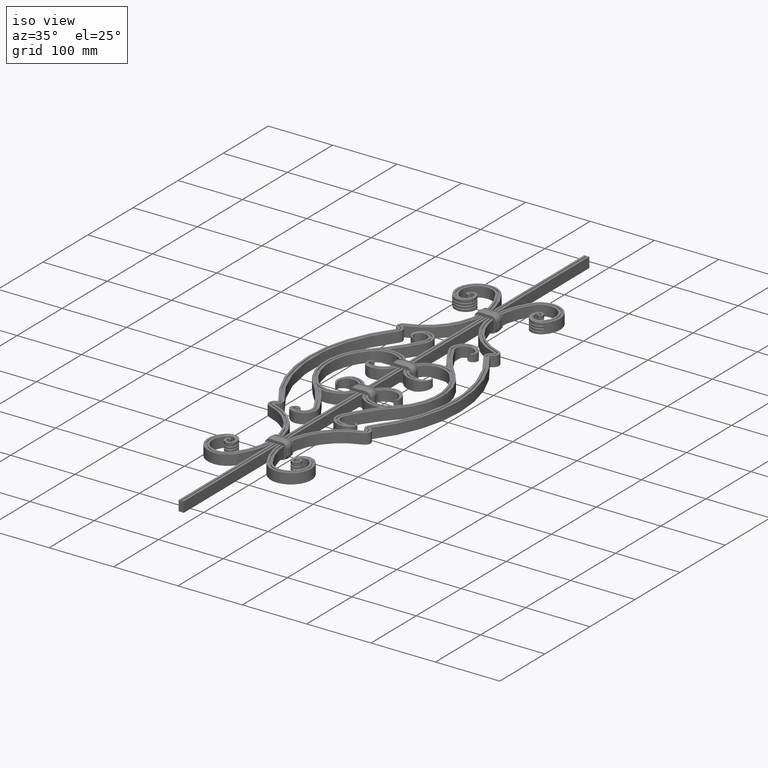
[diagram: clean part render]
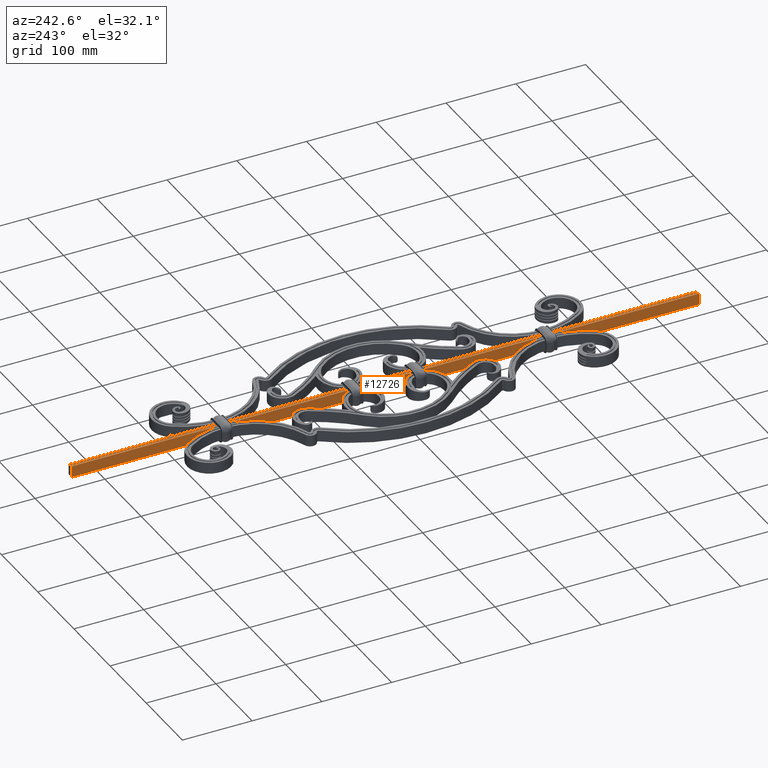
[diagram: tour spotlight — one face highlighted and labeled with its STEP entity id]
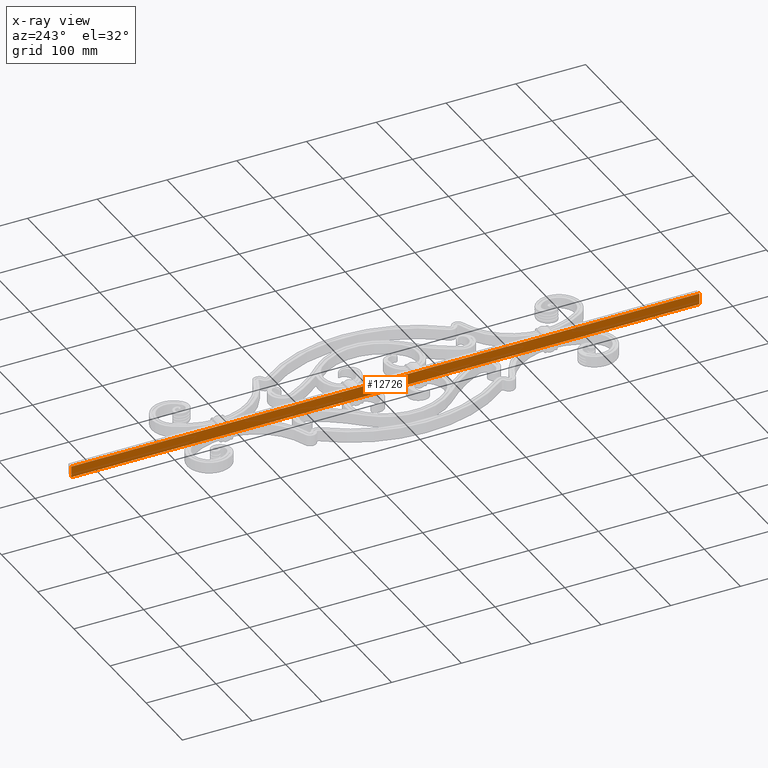
[diagram: x-ray of the same camera — body ghosted, this tour face saturated]
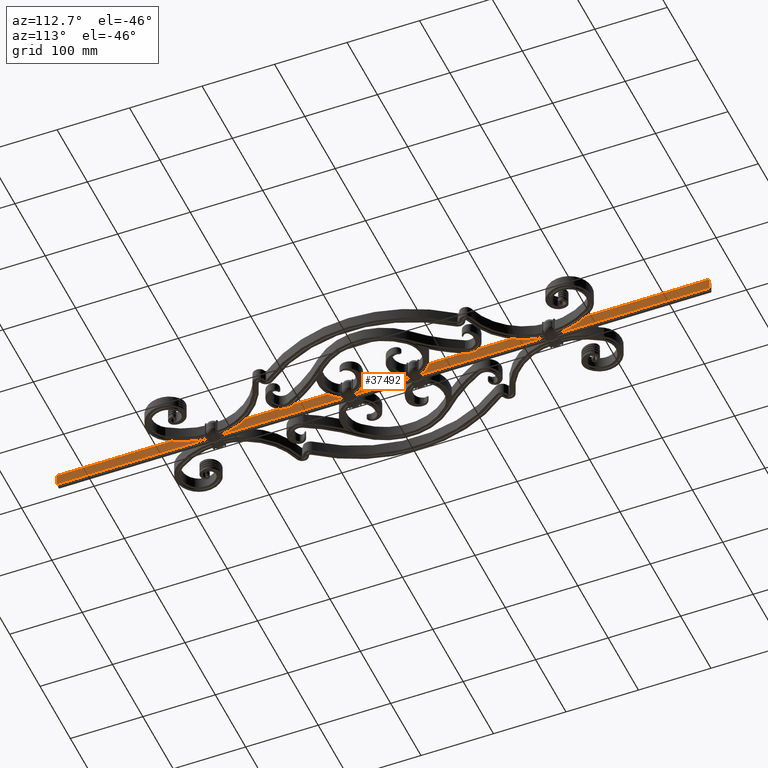
[diagram: tour spotlight — one face highlighted and labeled with its STEP entity id]
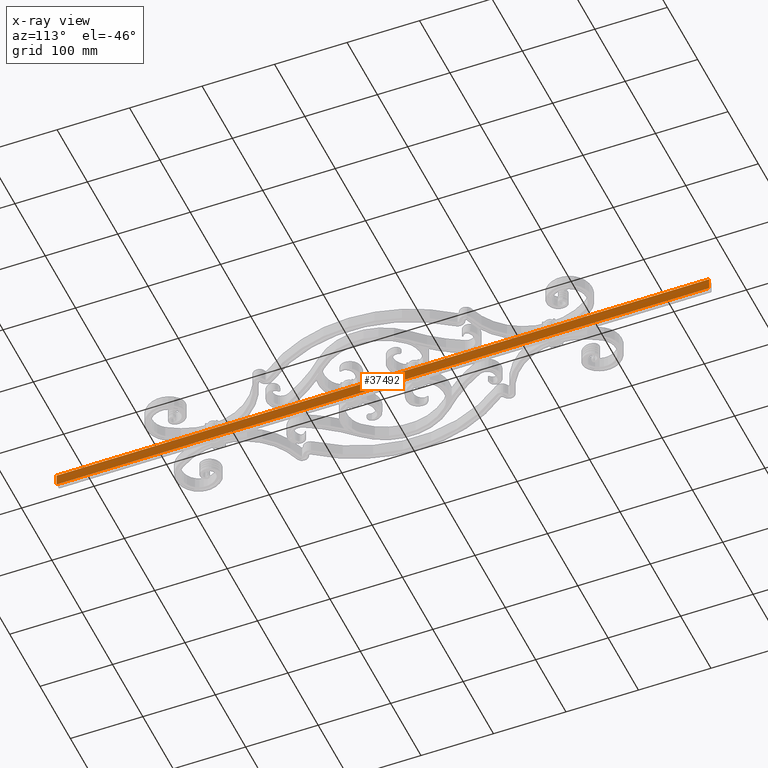
[diagram: x-ray of the same camera — body ghosted, this tour face saturated]
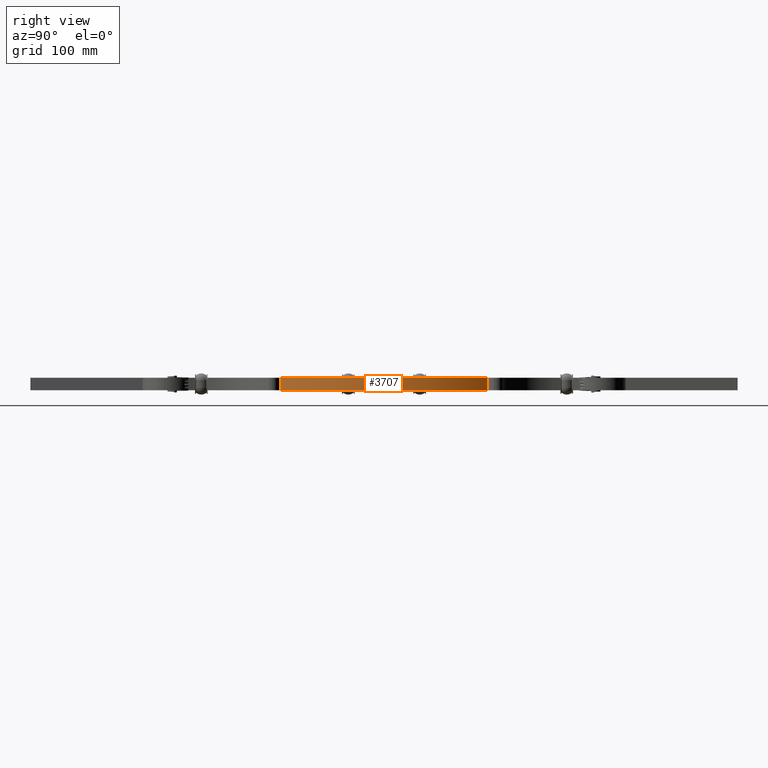
[diagram: tour spotlight — one face highlighted and labeled with its STEP entity id]
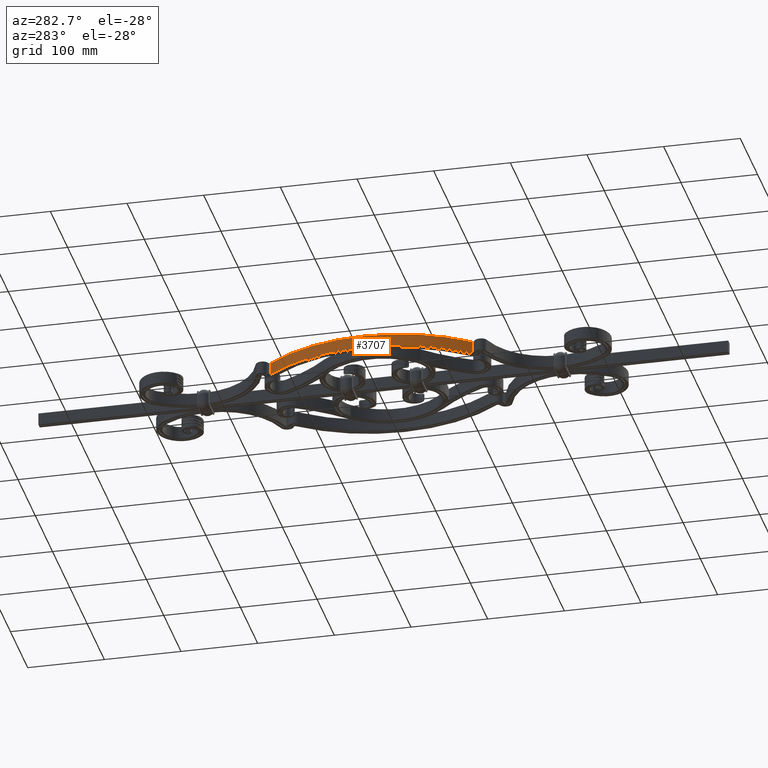
[diagram: tour spotlight — one face highlighted and labeled with its STEP entity id]
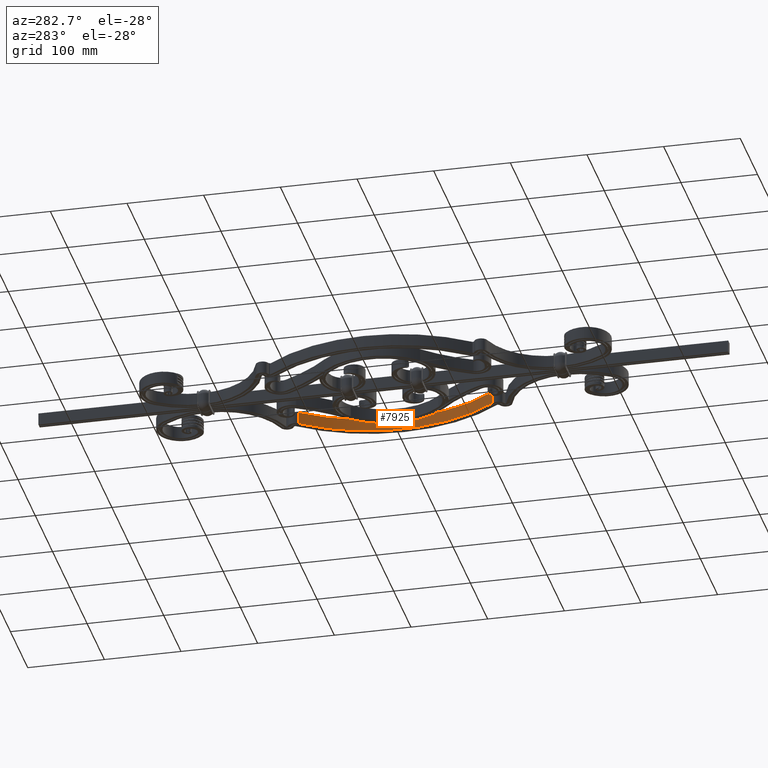
[diagram: tour spotlight — one face highlighted and labeled with its STEP entity id]
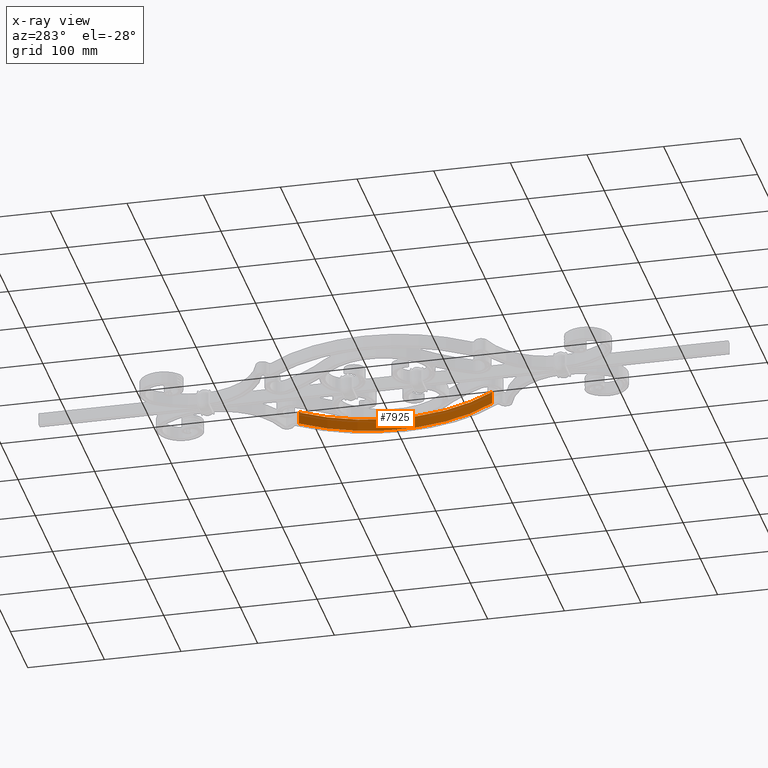
[diagram: x-ray of the same camera — body ghosted, this tour face saturated]
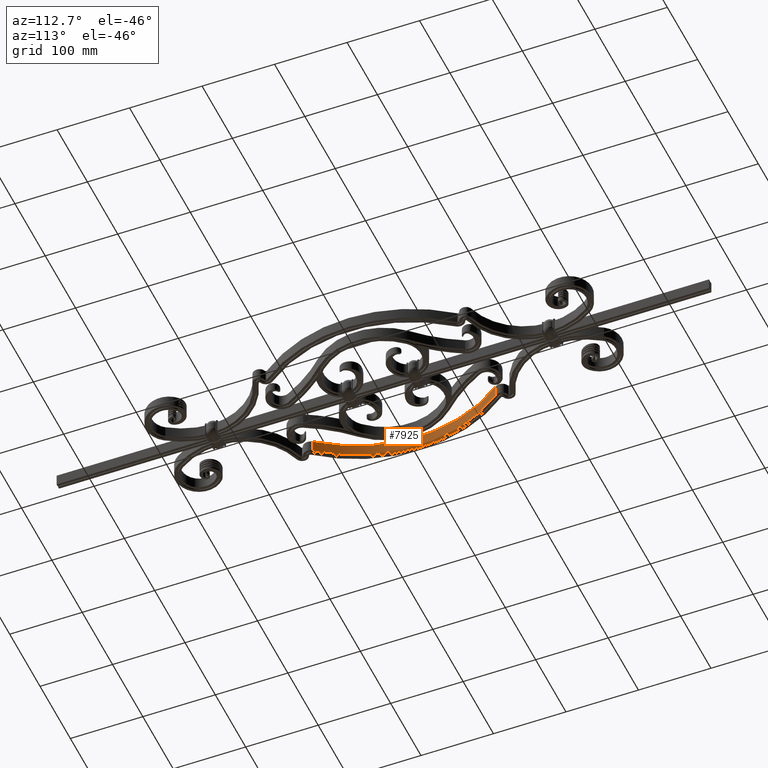
[diagram: tour spotlight — one face highlighted and labeled with its STEP entity id]
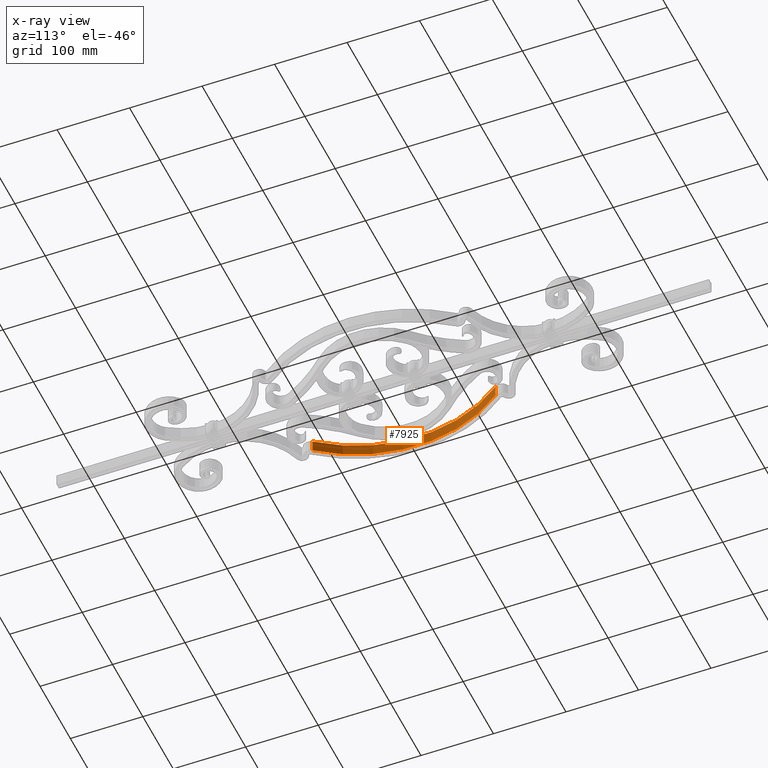
[diagram: x-ray of the same camera — body ghosted, this tour face saturated]
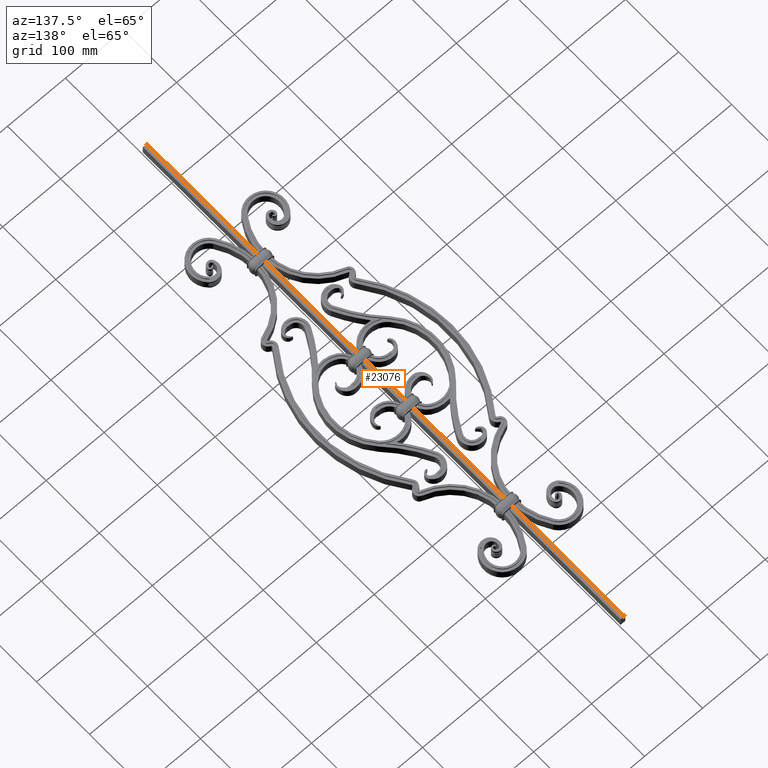
[diagram: tour spotlight — one face highlighted and labeled with its STEP entity id]
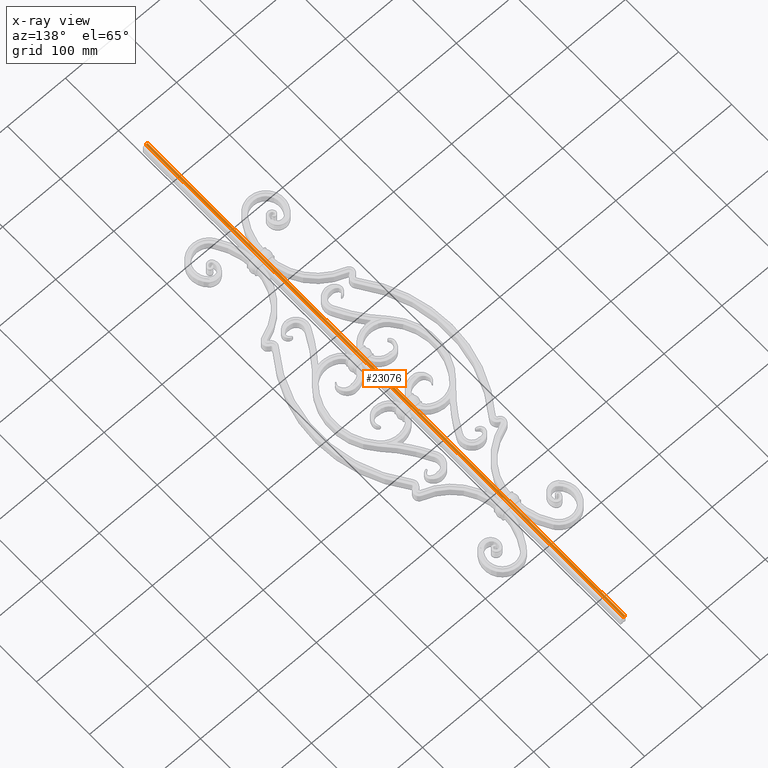
[diagram: x-ray of the same camera — body ghosted, this tour face saturated]
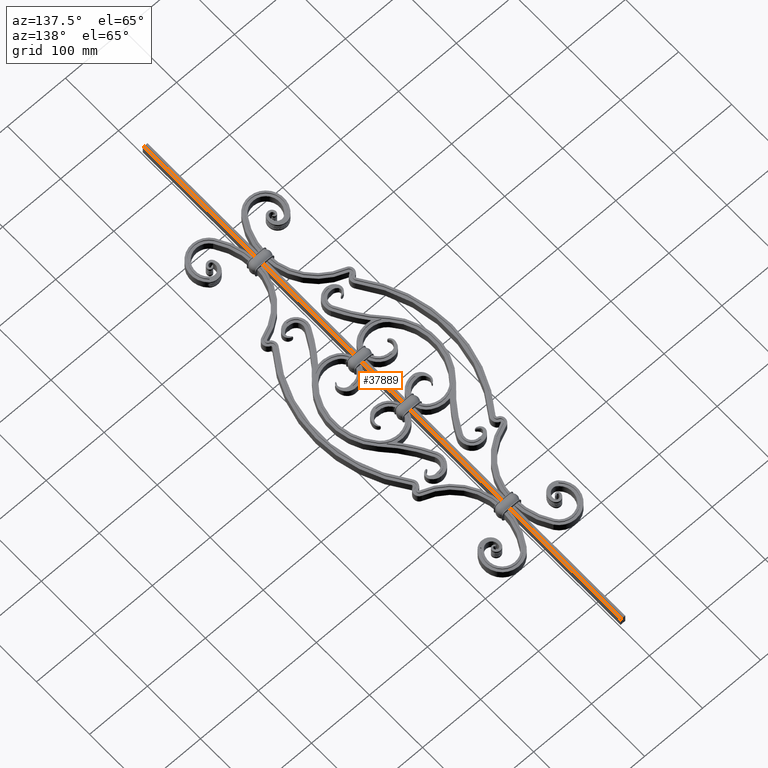
[diagram: tour spotlight — one face highlighted and labeled with its STEP entity id]
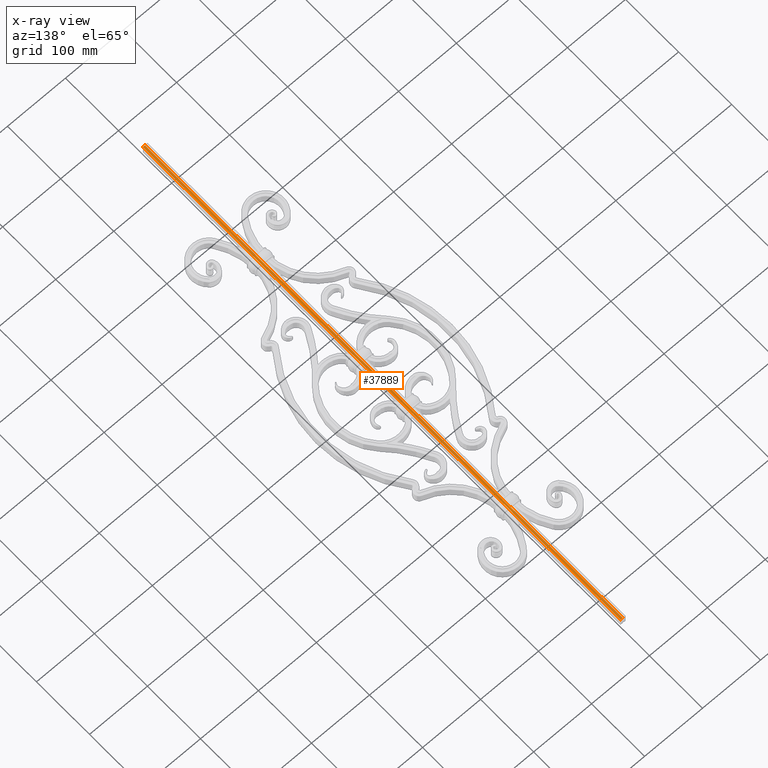
[diagram: x-ray of the same camera — body ghosted, this tour face saturated]
A machine part: a face-by-face anatomy tour. The part has 1314 B-rep faces; the first image is the clean iso view, then the 8 largest visible faces are spotlighted one at a time (largest first), each with its STEP entity span.

Face 1 — auxiliary view, entity #12726. An x-ray twin of the same camera follows (body ghosted, this face saturated) — the face is partly hidden behind the body. In plain terms, the highlighted planar face has unit normal (1, 0, -0).
Definition (entity closure, byte-faithful):
#1818 = DIRECTION ( 'NONE',  ( 5.421010862427522200E-017, 0.0000000000000000000, 1.000000000000000000 ) ) ;
#3768 = ORIENTED_EDGE ( 'NONE', *, *, #26019, .T. ) ;
#3943 = VECTOR ( 'NONE', #30865, 1000.000000000000000 ) ;
#4602 = LINE ( 'NONE', #31978, #15599 ) ;
#4717 = CARTESIAN_POINT ( 'NONE',  ( -3.999999999999999100, 450.0000000000000000, -8.000000000000000000 ) ) ;
#8541 = EDGE_CURVE ( 'NONE', #11926, #9514, #22048, .T. ) ;
#9514 = VERTEX_POINT ( 'NONE', #13615 ) ;
#10082 = CARTESIAN_POINT ( 'NONE',  ( -3.999999999999998200, 450.0000000000000000, 8.000000000000000000 ) ) ;
#10532 = VERTEX_POINT ( 'NONE', #10082 ) ;
#10576 = VECTOR ( 'NONE', #1818, 1000.000000000000000 ) ;
#10737 = DIRECTION ( 'NONE',  ( 1.000000000000000000, 0.0000000000000000000, -5.421010862427522200E-017 ) ) ;
#11288 = LINE ( 'NONE', #36375, #3943 ) ;
#11926 = VERTEX_POINT ( 'NONE', #13637 ) ;
#12726 = ADVANCED_FACE ( 'NONE', ( #33821 ), #16625, .F. ) ;
#13615 = CARTESIAN_POINT ( 'NONE',  ( -3.999999999999998200, -450.0000000000000000, 8.000000000000000000 ) ) ;
#13637 = CARTESIAN_POINT ( 'NONE',  ( -3.999999999999999100, -450.0000000000000000, -8.000000000000000000 ) ) ;
#13987 = VERTEX_POINT ( 'NONE', #31409 ) ;
#15599 = VECTOR ( 'NONE', #37721, 1000.000000000000000 ) ;
#16625 = PLANE ( 'NONE',  #27175 ) ;
#19095 = ORIENTED_EDGE ( 'NONE', *, *, #36166, .F. ) ;
#19370 = CARTESIAN_POINT ( 'NONE',  ( -3.999999999999999100, -450.0000000000000000, -8.000000000000000000 ) ) ;
#22048 = LINE ( 'NONE', #19370, #10576 ) ;
#23220 = EDGE_LOOP ( 'NONE', ( #36790, #33414, #19095, #3768 ) ) ;
#26019 = EDGE_CURVE ( 'NONE', #13987, #11926, #4602, .T. ) ;
#27175 = AXIS2_PLACEMENT_3D ( 'NONE', #4717, #10737, #37130 ) ;
#27213 = CARTESIAN_POINT ( 'NONE',  ( -3.999999999999999100, 450.0000000000000000, -8.000000000000000000 ) ) ;
#30677 = LINE ( 'NONE', #27213, #33439 ) ;
#30865 = DIRECTION ( 'NONE',  ( -0.0000000000000000000, -1.000000000000000000, -0.0000000000000000000 ) ) ;
#31409 = CARTESIAN_POINT ( 'NONE',  ( -3.999999999999999100, 450.0000000000000000, -8.000000000000000000 ) ) ;
#31581 = EDGE_CURVE ( 'NONE', #10532, #9514, #11288, .T. ) ;
#31978 = CARTESIAN_POINT ( 'NONE',  ( -3.999999999999999100, 450.0000000000000000, -8.000000000000000000 ) ) ;
#33414 = ORIENTED_EDGE ( 'NONE', *, *, #31581, .F. ) ;
#33439 = VECTOR ( 'NONE', #36143, 1000.000000000000000 ) ;
#33821 = FACE_OUTER_BOUND ( 'NONE', #23220, .T. ) ;
#36143 = DIRECTION ( 'NONE',  ( 5.421010862427522200E-017, 0.0000000000000000000, 1.000000000000000000 ) ) ;
#36166 = EDGE_CURVE ( 'NONE', #13987, #10532, #30677, .T. ) ;
#36375 = CARTESIAN_POINT ( 'NONE',  ( -3.999999999999998200, 450.0000000000000000, 8.000000000000000000 ) ) ;
#36790 = ORIENTED_EDGE ( 'NONE', *, *, #8541, .T. ) ;
#37130 = DIRECTION ( 'NONE',  ( -5.421010862427522200E-017, 0.0000000000000000000, -1.000000000000000000 ) ) ;
#37721 = DIRECTION ( 'NONE',  ( -0.0000000000000000000, -1.000000000000000000, -0.0000000000000000000 ) ) ;

Face 2 — auxiliary view, entity #37492. An x-ray twin of the same camera follows (body ghosted, this face saturated) — the face is partly hidden behind the body. In plain terms, the highlighted planar face has unit normal (-1, 0, 0).
Definition (entity closure, byte-faithful):
#1093 = DIRECTION ( 'NONE',  ( -0.0000000000000000000, -1.000000000000000000, -0.0000000000000000000 ) ) ;
#1401 = CARTESIAN_POINT ( 'NONE',  ( 4.000000000000002700, -450.0000000000000000, 8.000000000000000000 ) ) ;
#1771 = PLANE ( 'NONE',  #16219 ) ;
#2116 = LINE ( 'NONE', #27603, #32400 ) ;
#2718 = VERTEX_POINT ( 'NONE', #8309 ) ;
#2925 = CARTESIAN_POINT ( 'NONE',  ( 4.000000000000000900, -450.0000000000000000, -8.000000000000000000 ) ) ;
#3754 = EDGE_CURVE ( 'NONE', #2718, #31816, #31265, .T. ) ;
#5655 = LINE ( 'NONE', #27395, #25399 ) ;
#7090 = CARTESIAN_POINT ( 'NONE',  ( 4.000000000000000900, 450.0000000000000000, -8.000000000000000000 ) ) ;
#7541 = DIRECTION ( 'NONE',  ( -1.000000000000000000, 0.0000000000000000000, 1.084202172485504400E-016 ) ) ;
#7653 = CARTESIAN_POINT ( 'NONE',  ( 4.000000000000000900, 450.0000000000000000, -8.000000000000000000 ) ) ;
#7784 = DIRECTION ( 'NONE',  ( 1.084202172485504400E-016, 0.0000000000000000000, 1.000000000000000000 ) ) ;
#8309 = CARTESIAN_POINT ( 'NONE',  ( 4.000000000000002700, 450.0000000000000000, 8.000000000000000000 ) ) ;
#10987 = CARTESIAN_POINT ( 'NONE',  ( 4.000000000000000900, 450.0000000000000000, -8.000000000000000000 ) ) ;
#15119 = LINE ( 'NONE', #36026, #26117 ) ;
#15510 = EDGE_CURVE ( 'NONE', #31816, #35875, #2116, .T. ) ;
#16219 = AXIS2_PLACEMENT_3D ( 'NONE', #10987, #7541, #7784 ) ;
#17236 = ORIENTED_EDGE ( 'NONE', *, *, #3754, .F. ) ;
#18575 = ORIENTED_EDGE ( 'NONE', *, *, #15510, .F. ) ;
#21198 = VECTOR ( 'NONE', #21583, 1000.000000000000000 ) ;
#21444 = FACE_OUTER_BOUND ( 'NONE', #24505, .T. ) ;
#21583 = DIRECTION ( 'NONE',  ( -1.084202172485504400E-016, -0.0000000000000000000, -1.000000000000000000 ) ) ;
#21681 = EDGE_CURVE ( 'NONE', #2718, #33693, #5655, .T. ) ;
#21883 = ORIENTED_EDGE ( 'NONE', *, *, #21681, .T. ) ;
#24505 = EDGE_LOOP ( 'NONE', ( #27066, #18575, #17236, #21883 ) ) ;
#25399 = VECTOR ( 'NONE', #1093, 1000.000000000000000 ) ;
#26117 = VECTOR ( 'NONE', #35654, 1000.000000000000000 ) ;
#27066 = ORIENTED_EDGE ( 'NONE', *, *, #34522, .T. ) ;
#27395 = CARTESIAN_POINT ( 'NONE',  ( 4.000000000000002700, 450.0000000000000000, 8.000000000000000000 ) ) ;
#27603 = CARTESIAN_POINT ( 'NONE',  ( 4.000000000000000900, 450.0000000000000000, -8.000000000000000000 ) ) ;
#31265 = LINE ( 'NONE', #7090, #21198 ) ;
#31816 = VERTEX_POINT ( 'NONE', #7653 ) ;
#32400 = VECTOR ( 'NONE', #36170, 1000.000000000000000 ) ;
#33693 = VERTEX_POINT ( 'NONE', #1401 ) ;
#34522 = EDGE_CURVE ( 'NONE', #33693, #35875, #15119, .T. ) ;
#35654 = DIRECTION ( 'NONE',  ( -1.084202172485504400E-016, -0.0000000000000000000, -1.000000000000000000 ) ) ;
#35875 = VERTEX_POINT ( 'NONE', #2925 ) ;
#36026 = CARTESIAN_POINT ( 'NONE',  ( 4.000000000000000900, -450.0000000000000000, -8.000000000000000000 ) ) ;
#36170 = DIRECTION ( 'NONE',  ( -0.0000000000000000000, -1.000000000000000000, -0.0000000000000000000 ) ) ;
#37492 = ADVANCED_FACE ( 'NONE', ( #21444 ), #1771, .F. ) ;

Face 3 — right view, entity #3707. In plain terms, the highlighted cylindrical surface (partial cylindrical patch) has radius 211.118 mm, axis along (-0, -0, -1).
Definition (entity closure, byte-faithful):
#41 = AXIS2_PLACEMENT_3D ( 'NONE', #23668, #21456, #12495 ) ;
#760 = LINE ( 'NONE', #2173, #15429 ) ;
#1195 = VERTEX_POINT ( 'NONE', #25563 ) ;
#1543 = EDGE_CURVE ( 'NONE', #11028, #15682, #11154, .T. ) ;
#1662 = VERTEX_POINT ( 'NONE', #29813 ) ;
#2173 = CARTESIAN_POINT ( 'NONE',  ( 11.43168544586673700, 131.0119249617390300, 8.000000000000097700 ) ) ;
#2426 = CARTESIAN_POINT ( 'NONE',  ( 11.43168544586673700, -131.0119249617390300, 8.000000000000000000 ) ) ;
#3707 = ADVANCED_FACE ( 'NONE', ( #12489 ), #30839, .T. ) ;
#4413 = DIRECTION ( 'NONE',  ( -1.000000000000000000, -1.374116082032164600E-017, -7.805995682353163600E-016 ) ) ;
#6485 = ORIENTED_EDGE ( 'NONE', *, *, #20621, .F. ) ;
#7601 = CARTESIAN_POINT ( 'NONE',  ( -154.1181416489294200, 1.857322634242421600E-016, 7.999999999999927200 ) ) ;
#9425 = DIRECTION ( 'NONE',  ( -7.771561172376071100E-016, -2.879368041439096900E-016, -1.000000000000000000 ) ) ;
#9804 = DIRECTION ( 'NONE',  ( -1.000000000000000000, -1.374116082032165000E-017, -7.805995682353163600E-016 ) ) ;
#9953 = VECTOR ( 'NONE', #13473, 1000.000000000000000 ) ;
#11028 = VERTEX_POINT ( 'NONE', #30047 ) ;
#11154 = CIRCLE ( 'NONE', #27811, 211.1181416489294200 ) ;
#11766 = AXIS2_PLACEMENT_3D ( 'NONE', #24190, #9425, #9804 ) ;
#12489 = FACE_OUTER_BOUND ( 'NONE', #26881, .T. ) ;
#12495 = DIRECTION ( 'NONE',  ( -1.000000000000000000, -1.374116082032164600E-017, -7.805995682353163600E-016 ) ) ;
#13473 = DIRECTION ( 'NONE',  ( -7.771561172376071100E-016, -2.879368041439096900E-016, -1.000000000000000000 ) ) ;
#13949 = EDGE_CURVE ( 'NONE', #15682, #1662, #17745, .T. ) ;
#14067 = EDGE_CURVE ( 'NONE', #11028, #1195, #760, .T. ) ;
#14351 = DIRECTION ( 'NONE',  ( -7.771561172376071100E-016, -2.879368041439096900E-016, -1.000000000000000000 ) ) ;
#15429 = VECTOR ( 'NONE', #14351, 1000.000000000000000 ) ;
#15497 = ORIENTED_EDGE ( 'NONE', *, *, #1543, .T. ) ;
#15682 = VERTEX_POINT ( 'NONE', #2426 ) ;
#17745 = LINE ( 'NONE', #31039, #9953 ) ;
#20621 = EDGE_CURVE ( 'NONE', #1195, #1662, #21701, .T. ) ;
#21456 = DIRECTION ( 'NONE',  ( -7.771561172376071100E-016, -2.879368041439096900E-016, -1.000000000000000000 ) ) ;
#21701 = CIRCLE ( 'NONE', #11766, 211.1181416489294200 ) ;
#23668 = CARTESIAN_POINT ( 'NONE',  ( -154.1181416489294200, 1.857322634242421600E-016, 7.999999999999927200 ) ) ;
#24184 = ORIENTED_EDGE ( 'NONE', *, *, #13949, .T. ) ;
#24190 = CARTESIAN_POINT ( 'NONE',  ( -154.1181416489294200, -4.421256602878343800E-015, -8.000000000000170500 ) ) ;
#24464 = ORIENTED_EDGE ( 'NONE', *, *, #14067, .F. ) ;
#25563 = CARTESIAN_POINT ( 'NONE',  ( 11.43168544586673700, 131.0119249617390300, -8.000000000000000000 ) ) ;
#26881 = EDGE_LOOP ( 'NONE', ( #6485, #24464, #15497, #24184 ) ) ;
#27811 = AXIS2_PLACEMENT_3D ( 'NONE', #7601, #30940, #4413 ) ;
#29813 = CARTESIAN_POINT ( 'NONE',  ( 11.43168544586673700, -131.0119249617390300, -8.000000000000097700 ) ) ;
#30047 = CARTESIAN_POINT ( 'NONE',  ( 11.43168544586673700, 131.0119249617390300, 8.000000000000097700 ) ) ;
#30839 = CYLINDRICAL_SURFACE ( 'NONE', #41, 211.1181416489294200 ) ;
#30940 = DIRECTION ( 'NONE',  ( -7.771561172376071100E-016, -2.879368041439096900E-016, -1.000000000000000000 ) ) ;
#31039 = CARTESIAN_POINT ( 'NONE',  ( 11.43168544586673700, -131.0119249617390300, 8.000000000000000000 ) ) ;

Face 4 — auxiliary view, entity #3707. In plain terms, the highlighted cylindrical surface (partial cylindrical patch) has radius 211.118 mm, axis along (0, -0, 1).
Definition (entity closure, byte-faithful):
#41 = AXIS2_PLACEMENT_3D ( 'NONE', #23668, #21456, #12495 ) ;
#760 = LINE ( 'NONE', #2173, #15429 ) ;
#1195 = VERTEX_POINT ( 'NONE', #25563 ) ;
#1543 = EDGE_CURVE ( 'NONE', #11028, #15682, #11154, .T. ) ;
#1662 = VERTEX_POINT ( 'NONE', #29813 ) ;
#2173 = CARTESIAN_POINT ( 'NONE',  ( 11.43168544586673700, 131.0119249617390300, 8.000000000000097700 ) ) ;
#2426 = CARTESIAN_POINT ( 'NONE',  ( 11.43168544586673700, -131.0119249617390300, 8.000000000000000000 ) ) ;
#3707 = ADVANCED_FACE ( 'NONE', ( #12489 ), #30839, .T. ) ;
#4413 = DIRECTION ( 'NONE',  ( -1.000000000000000000, -1.374116082032164600E-017, -7.805995682353163600E-016 ) ) ;
#6485 = ORIENTED_EDGE ( 'NONE', *, *, #20621, .F. ) ;
#7601 = CARTESIAN_POINT ( 'NONE',  ( -154.1181416489294200, 1.857322634242421600E-016, 7.999999999999927200 ) ) ;
#9425 = DIRECTION ( 'NONE',  ( -7.771561172376071100E-016, -2.879368041439096900E-016, -1.000000000000000000 ) ) ;
#9804 = DIRECTION ( 'NONE',  ( -1.000000000000000000, -1.374116082032165000E-017, -7.805995682353163600E-016 ) ) ;
#9953 = VECTOR ( 'NONE', #13473, 1000.000000000000000 ) ;
#11028 = VERTEX_POINT ( 'NONE', #30047 ) ;
#11154 = CIRCLE ( 'NONE', #27811, 211.1181416489294200 ) ;
#11766 = AXIS2_PLACEMENT_3D ( 'NONE', #24190, #9425, #9804 ) ;
#12489 = FACE_OUTER_BOUND ( 'NONE', #26881, .T. ) ;
#12495 = DIRECTION ( 'NONE',  ( -1.000000000000000000, -1.374116082032164600E-017, -7.805995682353163600E-016 ) ) ;
#13473 = DIRECTION ( 'NONE',  ( -7.771561172376071100E-016, -2.879368041439096900E-016, -1.000000000000000000 ) ) ;
#13949 = EDGE_CURVE ( 'NONE', #15682, #1662, #17745, .T. ) ;
#14067 = EDGE_CURVE ( 'NONE', #11028, #1195, #760, .T. ) ;
#14351 = DIRECTION ( 'NONE',  ( -7.771561172376071100E-016, -2.879368041439096900E-016, -1.000000000000000000 ) ) ;
#15429 = VECTOR ( 'NONE', #14351, 1000.000000000000000 ) ;
#15497 = ORIENTED_EDGE ( 'NONE', *, *, #1543, .T. ) ;
#15682 = VERTEX_POINT ( 'NONE', #2426 ) ;
#17745 = LINE ( 'NONE', #31039, #9953 ) ;
#20621 = EDGE_CURVE ( 'NONE', #1195, #1662, #21701, .T. ) ;
#21456 = DIRECTION ( 'NONE',  ( -7.771561172376071100E-016, -2.879368041439096900E-016, -1.000000000000000000 ) ) ;
#21701 = CIRCLE ( 'NONE', #11766, 211.1181416489294200 ) ;
#23668 = CARTESIAN_POINT ( 'NONE',  ( -154.1181416489294200, 1.857322634242421600E-016, 7.999999999999927200 ) ) ;
#24184 = ORIENTED_EDGE ( 'NONE', *, *, #13949, .T. ) ;
#24190 = CARTESIAN_POINT ( 'NONE',  ( -154.1181416489294200, -4.421256602878343800E-015, -8.000000000000170500 ) ) ;
#24464 = ORIENTED_EDGE ( 'NONE', *, *, #14067, .F. ) ;
#25563 = CARTESIAN_POINT ( 'NONE',  ( 11.43168544586673700, 131.0119249617390300, -8.000000000000000000 ) ) ;
#26881 = EDGE_LOOP ( 'NONE', ( #6485, #24464, #15497, #24184 ) ) ;
#27811 = AXIS2_PLACEMENT_3D ( 'NONE', #7601, #30940, #4413 ) ;
#29813 = CARTESIAN_POINT ( 'NONE',  ( 11.43168544586673700, -131.0119249617390300, -8.000000000000097700 ) ) ;
#30047 = CARTESIAN_POINT ( 'NONE',  ( 11.43168544586673700, 131.0119249617390300, 8.000000000000097700 ) ) ;
#30839 = CYLINDRICAL_SURFACE ( 'NONE', #41, 211.1181416489294200 ) ;
#30940 = DIRECTION ( 'NONE',  ( -7.771561172376071100E-016, -2.879368041439096900E-016, -1.000000000000000000 ) ) ;
#31039 = CARTESIAN_POINT ( 'NONE',  ( 11.43168544586673700, -131.0119249617390300, 8.000000000000000000 ) ) ;

Face 5 — auxiliary view, entity #7925. An x-ray twin of the same camera follows (body ghosted, this face saturated) — the face is partly hidden behind the body. In plain terms, the highlighted cylindrical surface (partial cylindrical patch) has radius 203.118 mm, axis along (-0, -0, -1).
Definition (entity closure, byte-faithful):
#1949 = VECTOR ( 'NONE', #11019, 1000.000000000000000 ) ;
#2130 = EDGE_CURVE ( 'NONE', #32298, #19486, #25845, .T. ) ;
#5054 = FACE_OUTER_BOUND ( 'NONE', #7228, .T. ) ;
#5113 = CARTESIAN_POINT ( 'NONE',  ( 5.158427229333469200, 126.0474278725367000, 8.000000000000097700 ) ) ;
#5122 = ORIENTED_EDGE ( 'NONE', *, *, #23328, .T. ) ;
#5182 = DIRECTION ( 'NONE',  ( -1.000000000000000000, -1.374116082032164600E-017, -7.771823581703268700E-016 ) ) ;
#5305 = CIRCLE ( 'NONE', #8488, 203.1181416489294200 ) ;
#5386 = VERTEX_POINT ( 'NONE', #5113 ) ;
#6290 = CARTESIAN_POINT ( 'NONE',  ( -154.1181416489294200, 1.857322634242421600E-016, 7.999999999999927200 ) ) ;
#6742 = CARTESIAN_POINT ( 'NONE',  ( 5.158427229333469200, -126.0474278725367000, -8.000000000000097700 ) ) ;
#7228 = EDGE_LOOP ( 'NONE', ( #32951, #5122, #21196, #10777 ) ) ;
#7925 = ADVANCED_FACE ( 'NONE', ( #5054 ), #27564, .F. ) ;
#8488 = AXIS2_PLACEMENT_3D ( 'NONE', #15776, #10259, #30774 ) ;
#9879 = CARTESIAN_POINT ( 'NONE',  ( 5.158427229333469200, 126.0474278725367000, -8.000000000000000000 ) ) ;
#10247 = DIRECTION ( 'NONE',  ( -7.771561172376071100E-016, -2.879368041439096900E-016, -1.000000000000000000 ) ) ;
#10259 = DIRECTION ( 'NONE',  ( -7.771561172376071100E-016, -2.879368041439096900E-016, -1.000000000000000000 ) ) ;
#10667 = LINE ( 'NONE', #15916, #1949 ) ;
#10777 = ORIENTED_EDGE ( 'NONE', *, *, #2130, .F. ) ;
#11019 = DIRECTION ( 'NONE',  ( -7.771561172376071100E-016, -2.879368041439096900E-016, -1.000000000000000000 ) ) ;
#12328 = DIRECTION ( 'NONE',  ( -1.000000000000000000, -1.374116082032164600E-017, -7.771823581703268700E-016 ) ) ;
#13915 = CARTESIAN_POINT ( 'NONE',  ( -154.1181416489294200, 1.857322634242421600E-016, 7.999999999999927200 ) ) ;
#14893 = EDGE_CURVE ( 'NONE', #17023, #19486, #5305, .T. ) ;
#15776 = CARTESIAN_POINT ( 'NONE',  ( -154.1181416489294200, -4.421256602878343800E-015, -8.000000000000170500 ) ) ;
#15916 = CARTESIAN_POINT ( 'NONE',  ( 5.158427229333469200, 126.0474278725367000, 8.000000000000097700 ) ) ;
#16710 = DIRECTION ( 'NONE',  ( -7.771561172376071100E-016, -2.879368041439096900E-016, -1.000000000000000000 ) ) ;
#17023 = VERTEX_POINT ( 'NONE', #9879 ) ;
#19486 = VERTEX_POINT ( 'NONE', #6742 ) ;
#20354 = VECTOR ( 'NONE', #10247, 1000.000000000000000 ) ;
#21196 = ORIENTED_EDGE ( 'NONE', *, *, #14893, .T. ) ;
#23328 = EDGE_CURVE ( 'NONE', #5386, #17023, #10667, .T. ) ;
#24570 = EDGE_CURVE ( 'NONE', #5386, #32298, #34900, .T. ) ;
#25580 = AXIS2_PLACEMENT_3D ( 'NONE', #6290, #26828, #12328 ) ;
#25845 = LINE ( 'NONE', #31134, #20354 ) ;
#26828 = DIRECTION ( 'NONE',  ( -7.771561172376071100E-016, -2.879368041439096900E-016, -1.000000000000000000 ) ) ;
#27564 = CYLINDRICAL_SURFACE ( 'NONE', #32682, 203.1181416489294200 ) ;
#27650 = CARTESIAN_POINT ( 'NONE',  ( 5.158427229333469200, -126.0474278725367000, 8.000000000000000000 ) ) ;
#30774 = DIRECTION ( 'NONE',  ( -1.000000000000000000, -1.374116082032165000E-017, -7.771823581703268700E-016 ) ) ;
#31134 = CARTESIAN_POINT ( 'NONE',  ( 5.158427229333469200, -126.0474278725367000, 8.000000000000000000 ) ) ;
#32298 = VERTEX_POINT ( 'NONE', #27650 ) ;
#32682 = AXIS2_PLACEMENT_3D ( 'NONE', #13915, #16710, #5182 ) ;
#32951 = ORIENTED_EDGE ( 'NONE', *, *, #24570, .F. ) ;
#34900 = CIRCLE ( 'NONE', #25580, 203.1181416489294200 ) ;

Face 6 — auxiliary view, entity #7925. An x-ray twin of the same camera follows (body ghosted, this face saturated) — the face is partly hidden behind the body. In plain terms, the highlighted cylindrical surface (partial cylindrical patch) has radius 203.118 mm, axis along (0, -0, 1).
Definition (entity closure, byte-faithful):
#1949 = VECTOR ( 'NONE', #11019, 1000.000000000000000 ) ;
#2130 = EDGE_CURVE ( 'NONE', #32298, #19486, #25845, .T. ) ;
#5054 = FACE_OUTER_BOUND ( 'NONE', #7228, .T. ) ;
#5113 = CARTESIAN_POINT ( 'NONE',  ( 5.158427229333469200, 126.0474278725367000, 8.000000000000097700 ) ) ;
#5122 = ORIENTED_EDGE ( 'NONE', *, *, #23328, .T. ) ;
#5182 = DIRECTION ( 'NONE',  ( -1.000000000000000000, -1.374116082032164600E-017, -7.771823581703268700E-016 ) ) ;
#5305 = CIRCLE ( 'NONE', #8488, 203.1181416489294200 ) ;
#5386 = VERTEX_POINT ( 'NONE', #5113 ) ;
#6290 = CARTESIAN_POINT ( 'NONE',  ( -154.1181416489294200, 1.857322634242421600E-016, 7.999999999999927200 ) ) ;
#6742 = CARTESIAN_POINT ( 'NONE',  ( 5.158427229333469200, -126.0474278725367000, -8.000000000000097700 ) ) ;
#7228 = EDGE_LOOP ( 'NONE', ( #32951, #5122, #21196, #10777 ) ) ;
#7925 = ADVANCED_FACE ( 'NONE', ( #5054 ), #27564, .F. ) ;
#8488 = AXIS2_PLACEMENT_3D ( 'NONE', #15776, #10259, #30774 ) ;
#9879 = CARTESIAN_POINT ( 'NONE',  ( 5.158427229333469200, 126.0474278725367000, -8.000000000000000000 ) ) ;
#10247 = DIRECTION ( 'NONE',  ( -7.771561172376071100E-016, -2.879368041439096900E-016, -1.000000000000000000 ) ) ;
#10259 = DIRECTION ( 'NONE',  ( -7.771561172376071100E-016, -2.879368041439096900E-016, -1.000000000000000000 ) ) ;
#10667 = LINE ( 'NONE', #15916, #1949 ) ;
#10777 = ORIENTED_EDGE ( 'NONE', *, *, #2130, .F. ) ;
#11019 = DIRECTION ( 'NONE',  ( -7.771561172376071100E-016, -2.879368041439096900E-016, -1.000000000000000000 ) ) ;
#12328 = DIRECTION ( 'NONE',  ( -1.000000000000000000, -1.374116082032164600E-017, -7.771823581703268700E-016 ) ) ;
#13915 = CARTESIAN_POINT ( 'NONE',  ( -154.1181416489294200, 1.857322634242421600E-016, 7.999999999999927200 ) ) ;
#14893 = EDGE_CURVE ( 'NONE', #17023, #19486, #5305, .T. ) ;
#15776 = CARTESIAN_POINT ( 'NONE',  ( -154.1181416489294200, -4.421256602878343800E-015, -8.000000000000170500 ) ) ;
#15916 = CARTESIAN_POINT ( 'NONE',  ( 5.158427229333469200, 126.0474278725367000, 8.000000000000097700 ) ) ;
#16710 = DIRECTION ( 'NONE',  ( -7.771561172376071100E-016, -2.879368041439096900E-016, -1.000000000000000000 ) ) ;
#17023 = VERTEX_POINT ( 'NONE', #9879 ) ;
#19486 = VERTEX_POINT ( 'NONE', #6742 ) ;
#20354 = VECTOR ( 'NONE', #10247, 1000.000000000000000 ) ;
#21196 = ORIENTED_EDGE ( 'NONE', *, *, #14893, .T. ) ;
#23328 = EDGE_CURVE ( 'NONE', #5386, #17023, #10667, .T. ) ;
#24570 = EDGE_CURVE ( 'NONE', #5386, #32298, #34900, .T. ) ;
#25580 = AXIS2_PLACEMENT_3D ( 'NONE', #6290, #26828, #12328 ) ;
#25845 = LINE ( 'NONE', #31134, #20354 ) ;
#26828 = DIRECTION ( 'NONE',  ( -7.771561172376071100E-016, -2.879368041439096900E-016, -1.000000000000000000 ) ) ;
#27564 = CYLINDRICAL_SURFACE ( 'NONE', #32682, 203.1181416489294200 ) ;
#27650 = CARTESIAN_POINT ( 'NONE',  ( 5.158427229333469200, -126.0474278725367000, 8.000000000000000000 ) ) ;
#30774 = DIRECTION ( 'NONE',  ( -1.000000000000000000, -1.374116082032165000E-017, -7.771823581703268700E-016 ) ) ;
#31134 = CARTESIAN_POINT ( 'NONE',  ( 5.158427229333469200, -126.0474278725367000, 8.000000000000000000 ) ) ;
#32298 = VERTEX_POINT ( 'NONE', #27650 ) ;
#32682 = AXIS2_PLACEMENT_3D ( 'NONE', #13915, #16710, #5182 ) ;
#32951 = ORIENTED_EDGE ( 'NONE', *, *, #24570, .F. ) ;
#34900 = CIRCLE ( 'NONE', #25580, 203.1181416489294200 ) ;

Face 7 — auxiliary view, entity #23076. An x-ray twin of the same camera follows (body ghosted, this face saturated) — the face is partly hidden behind the body. In plain terms, the highlighted planar face has unit normal (0, 0, -1).
Definition (entity closure, byte-faithful):
#503 = ORIENTED_EDGE ( 'NONE', *, *, #30912, .T. ) ;
#1128 = DIRECTION ( 'NONE',  ( 1.000000000000000000, 0.0000000000000000000, 0.0000000000000000000 ) ) ;
#2844 = CARTESIAN_POINT ( 'NONE',  ( -0.7500000000000000000, 450.0000000000000000, 8.000000000000000000 ) ) ;
#3943 = VECTOR ( 'NONE', #30865, 1000.000000000000000 ) ;
#4308 = VERTEX_POINT ( 'NONE', #2844 ) ;
#5721 = ORIENTED_EDGE ( 'NONE', *, *, #31581, .T. ) ;
#6863 = EDGE_LOOP ( 'NONE', ( #503, #34562, #25737, #5721 ) ) ;
#9514 = VERTEX_POINT ( 'NONE', #13615 ) ;
#9756 = CARTESIAN_POINT ( 'NONE',  ( -3.999999999999998200, 450.0000000000000000, 8.000000000000000000 ) ) ;
#10082 = CARTESIAN_POINT ( 'NONE',  ( -3.999999999999998200, 450.0000000000000000, 8.000000000000000000 ) ) ;
#10532 = VERTEX_POINT ( 'NONE', #10082 ) ;
#11288 = LINE ( 'NONE', #36375, #3943 ) ;
#12668 = CARTESIAN_POINT ( 'NONE',  ( -3.999999999999998200, 450.0000000000000000, 8.000000000000000000 ) ) ;
#13195 = VECTOR ( 'NONE', #19465, 1000.000000000000000 ) ;
#13615 = CARTESIAN_POINT ( 'NONE',  ( -3.999999999999998200, -450.0000000000000000, 8.000000000000000000 ) ) ;
#16056 = EDGE_CURVE ( 'NONE', #10532, #4308, #22766, .T. ) ;
#17261 = VERTEX_POINT ( 'NONE', #28969 ) ;
#18254 = EDGE_CURVE ( 'NONE', #4308, #17261, #22250, .T. ) ;
#19465 = DIRECTION ( 'NONE',  ( 1.000000000000000000, 0.0000000000000000000, 0.0000000000000000000 ) ) ;
#20760 = FACE_OUTER_BOUND ( 'NONE', #6863, .T. ) ;
#21333 = VECTOR ( 'NONE', #26120, 1000.000000000000000 ) ;
#22250 = LINE ( 'NONE', #31884, #21333 ) ;
#22766 = LINE ( 'NONE', #12668, #25534 ) ;
#23076 = ADVANCED_FACE ( 'NONE', ( #20760 ), #33351, .F. ) ;
#25534 = VECTOR ( 'NONE', #1128, 1000.000000000000000 ) ;
#25737 = ORIENTED_EDGE ( 'NONE', *, *, #16056, .F. ) ;
#26120 = DIRECTION ( 'NONE',  ( -0.0000000000000000000, -1.000000000000000000, -0.0000000000000000000 ) ) ;
#26967 = LINE ( 'NONE', #33699, #13195 ) ;
#28969 = CARTESIAN_POINT ( 'NONE',  ( -0.7499999999999997800, -450.0000000000000000, 8.000000000000000000 ) ) ;
#30279 = DIRECTION ( 'NONE',  ( 0.0000000000000000000, 0.0000000000000000000, -1.000000000000000000 ) ) ;
#30865 = DIRECTION ( 'NONE',  ( -0.0000000000000000000, -1.000000000000000000, -0.0000000000000000000 ) ) ;
#30912 = EDGE_CURVE ( 'NONE', #9514, #17261, #26967, .T. ) ;
#31581 = EDGE_CURVE ( 'NONE', #10532, #9514, #11288, .T. ) ;
#31884 = CARTESIAN_POINT ( 'NONE',  ( -0.7500000000000000000, 450.0000000000000000, 8.000000000000000000 ) ) ;
#33091 = DIRECTION ( 'NONE',  ( -1.000000000000000000, 0.0000000000000000000, -0.0000000000000000000 ) ) ;
#33148 = AXIS2_PLACEMENT_3D ( 'NONE', #9756, #30279, #33091 ) ;
#33351 = PLANE ( 'NONE',  #33148 ) ;
#33699 = CARTESIAN_POINT ( 'NONE',  ( -3.999999999999998200, -450.0000000000000000, 8.000000000000000000 ) ) ;
#34562 = ORIENTED_EDGE ( 'NONE', *, *, #18254, .F. ) ;
#36375 = CARTESIAN_POINT ( 'NONE',  ( -3.999999999999998200, 450.0000000000000000, 8.000000000000000000 ) ) ;

Face 8 — auxiliary view, entity #37889. An x-ray twin of the same camera follows (body ghosted, this face saturated) — the face is partly hidden behind the body. In plain terms, the highlighted planar face has unit normal (0, 0, -1).
Definition (entity closure, byte-faithful):
#522 = LINE ( 'NONE', #654, #29885 ) ;
#654 = CARTESIAN_POINT ( 'NONE',  ( -3.999999999999998200, -450.0000000000000000, 8.000000000000000000 ) ) ;
#1093 = DIRECTION ( 'NONE',  ( -0.0000000000000000000, -1.000000000000000000, -0.0000000000000000000 ) ) ;
#1401 = CARTESIAN_POINT ( 'NONE',  ( 4.000000000000002700, -450.0000000000000000, 8.000000000000000000 ) ) ;
#2718 = VERTEX_POINT ( 'NONE', #8309 ) ;
#3013 = CARTESIAN_POINT ( 'NONE',  ( 0.7500000000000000000, 450.0000000000000000, 8.000000000000000000 ) ) ;
#5103 = EDGE_CURVE ( 'NONE', #30017, #2718, #28494, .T. ) ;
#5655 = LINE ( 'NONE', #27395, #25399 ) ;
#8309 = CARTESIAN_POINT ( 'NONE',  ( 4.000000000000002700, 450.0000000000000000, 8.000000000000000000 ) ) ;
#9368 = AXIS2_PLACEMENT_3D ( 'NONE', #16629, #37134, #28576 ) ;
#14457 = DIRECTION ( 'NONE',  ( 1.000000000000000000, 0.0000000000000000000, 0.0000000000000000000 ) ) ;
#14859 = EDGE_LOOP ( 'NONE', ( #16213, #20938, #17632, #25510 ) ) ;
#15680 = VECTOR ( 'NONE', #14457, 1000.000000000000000 ) ;
#16213 = ORIENTED_EDGE ( 'NONE', *, *, #5103, .F. ) ;
#16629 = CARTESIAN_POINT ( 'NONE',  ( -3.999999999999998200, 450.0000000000000000, 8.000000000000000000 ) ) ;
#17632 = ORIENTED_EDGE ( 'NONE', *, *, #24637, .T. ) ;
#18340 = DIRECTION ( 'NONE',  ( 1.000000000000000000, 0.0000000000000000000, 0.0000000000000000000 ) ) ;
#18532 = CARTESIAN_POINT ( 'NONE',  ( 0.7500000000000000000, 450.0000000000000000, 8.000000000000000000 ) ) ;
#20832 = DIRECTION ( 'NONE',  ( -0.0000000000000000000, -1.000000000000000000, -0.0000000000000000000 ) ) ;
#20938 = ORIENTED_EDGE ( 'NONE', *, *, #23796, .T. ) ;
#21681 = EDGE_CURVE ( 'NONE', #2718, #33693, #5655, .T. ) ;
#23796 = EDGE_CURVE ( 'NONE', #30017, #30968, #37678, .T. ) ;
#24637 = EDGE_CURVE ( 'NONE', #30968, #33693, #522, .T. ) ;
#25055 = PLANE ( 'NONE',  #9368 ) ;
#25399 = VECTOR ( 'NONE', #1093, 1000.000000000000000 ) ;
#25510 = ORIENTED_EDGE ( 'NONE', *, *, #21681, .F. ) ;
#26018 = FACE_OUTER_BOUND ( 'NONE', #14859, .T. ) ;
#27395 = CARTESIAN_POINT ( 'NONE',  ( 4.000000000000002700, 450.0000000000000000, 8.000000000000000000 ) ) ;
#27953 = CARTESIAN_POINT ( 'NONE',  ( 0.7500000000000000000, -450.0000000000000000, 8.000000000000000000 ) ) ;
#28494 = LINE ( 'NONE', #34820, #15680 ) ;
#28576 = DIRECTION ( 'NONE',  ( -1.000000000000000000, 0.0000000000000000000, -0.0000000000000000000 ) ) ;
#29885 = VECTOR ( 'NONE', #18340, 1000.000000000000000 ) ;
#30017 = VERTEX_POINT ( 'NONE', #18532 ) ;
#30968 = VERTEX_POINT ( 'NONE', #27953 ) ;
#33587 = VECTOR ( 'NONE', #20832, 1000.000000000000000 ) ;
#33693 = VERTEX_POINT ( 'NONE', #1401 ) ;
#34820 = CARTESIAN_POINT ( 'NONE',  ( -3.999999999999998200, 450.0000000000000000, 8.000000000000000000 ) ) ;
#37134 = DIRECTION ( 'NONE',  ( 0.0000000000000000000, 0.0000000000000000000, -1.000000000000000000 ) ) ;
#37678 = LINE ( 'NONE', #3013, #33587 ) ;
#37889 = ADVANCED_FACE ( 'NONE', ( #26018 ), #25055, .F. ) ;